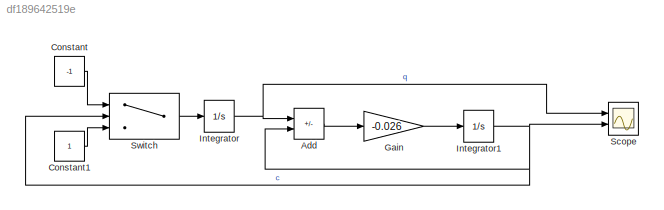
MODEL slx_df189642519e
KIND model
CONFIG AbsTol = auto
CONFIG EnableMultiTasking = off
CONFIG FixedStep = auto
CONFIG MaxStep = auto
CONFIG MinStep = auto
CONFIG RelTol = 1e-3
CONFIG SampleTimeConstraint = Unconstrained
CONFIG Solver = VariableStepAuto
CONFIG SolverName = VariableStepAuto
CONFIG StartTime = 0.0
CONFIG StopTime = 200
BLOCK [Sum] Add
  IconShape = rectangular
  Inputs = -+
  Ports = [2, 1]
BLOCK [Constant] Constant
  Value = -1
BLOCK [Constant] Constant1
BLOCK [Gain] Gain
  Gain = -0.026
BLOCK [Integrator] Integrator
  InitialCondition = 95
  Ports = [1, 1]
BLOCK [Integrator] Integrator1
  InitialCondition = 100
  Ports = [1, 1]
BLOCK [Scope] Scope
  Floating = off
  NumInputPorts = 2
  Ports = [2]
  ScopeSpecificationString = Simulink.scopes.TimeScopeBlockCfg('CurrentConfiguration', extmgr.ConfigurationSet(extmgr.Configuration('Core','General UI',true),extmgr.Configuration('Core','Source UI',true),extmgr.Configuration('Sources','WiredSimulink',true),extmgr.Configuration('Visuals','Time Domain',true,'SerializedDisplays',{struct('MinYLimReal','69.70341','MaxYLimReal','122.66929','YLabelReal','','MinYLimMag','69.70341','M...<+1335ch>
BLOCK [Switch] Switch
  Criteria = u2 > Threshold
  InputSameDT = off
  SaturateOnIntegerOverflow = off
  Threshold = 100
LINE Add:1 -> Gain:1
LINE Constant1:1 -> Switch:3
LINE Constant:1 -> Switch:1
LINE Gain:1 -> Integrator1:1
NET Integrator1:1 -> Add:2, Scope:2, Switch:2
NET Integrator:1 -> Add:1, Scope:1
LINE Switch:1 -> Integrator:1
note: NET lines group one-source signal fan-out (src -> all destinations, sorted); 1:1 wires keep LINE
